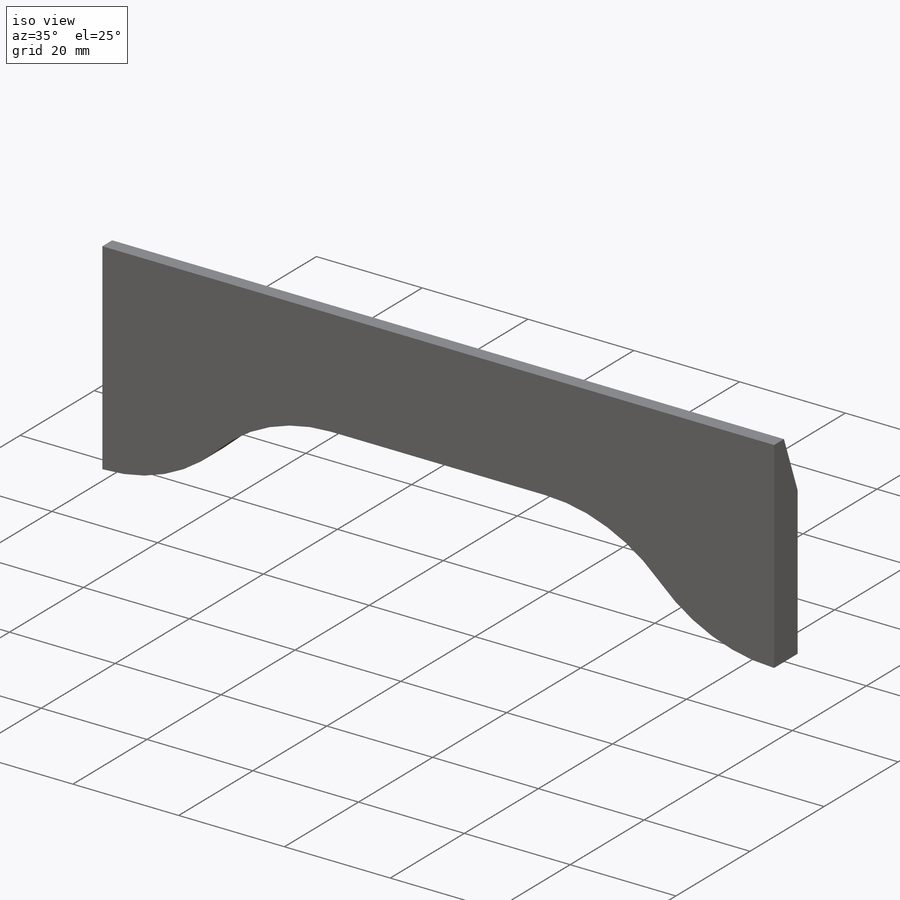
[diagram: iso view]
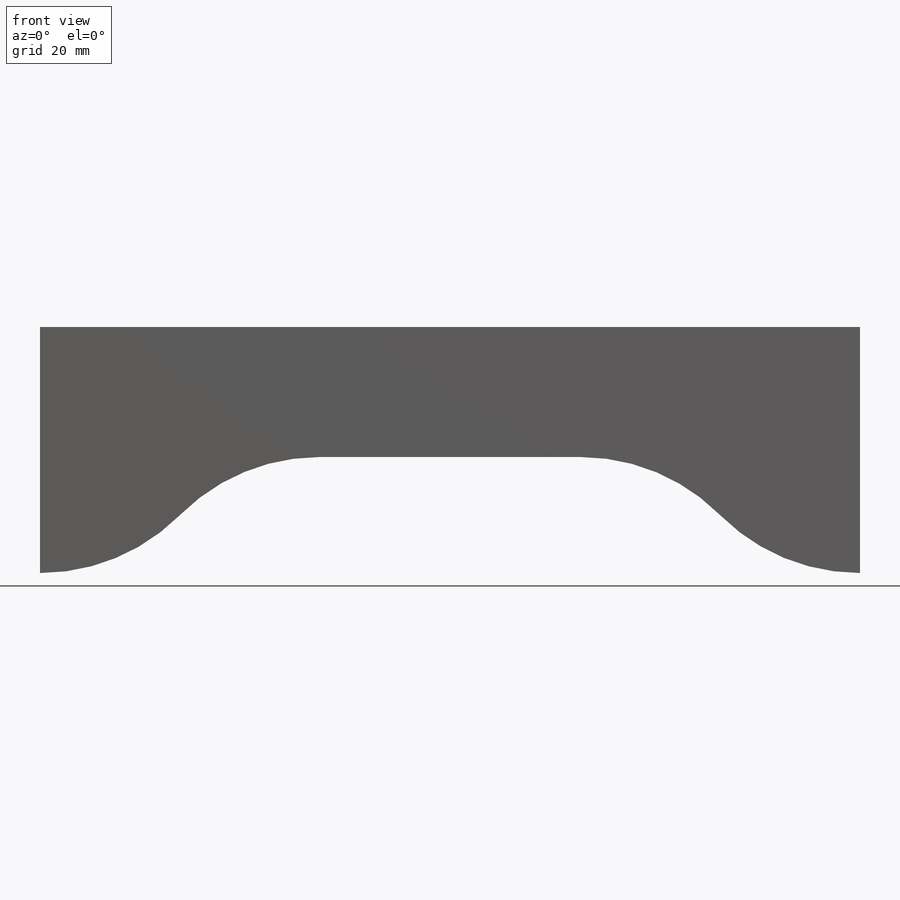
[diagram: front view]
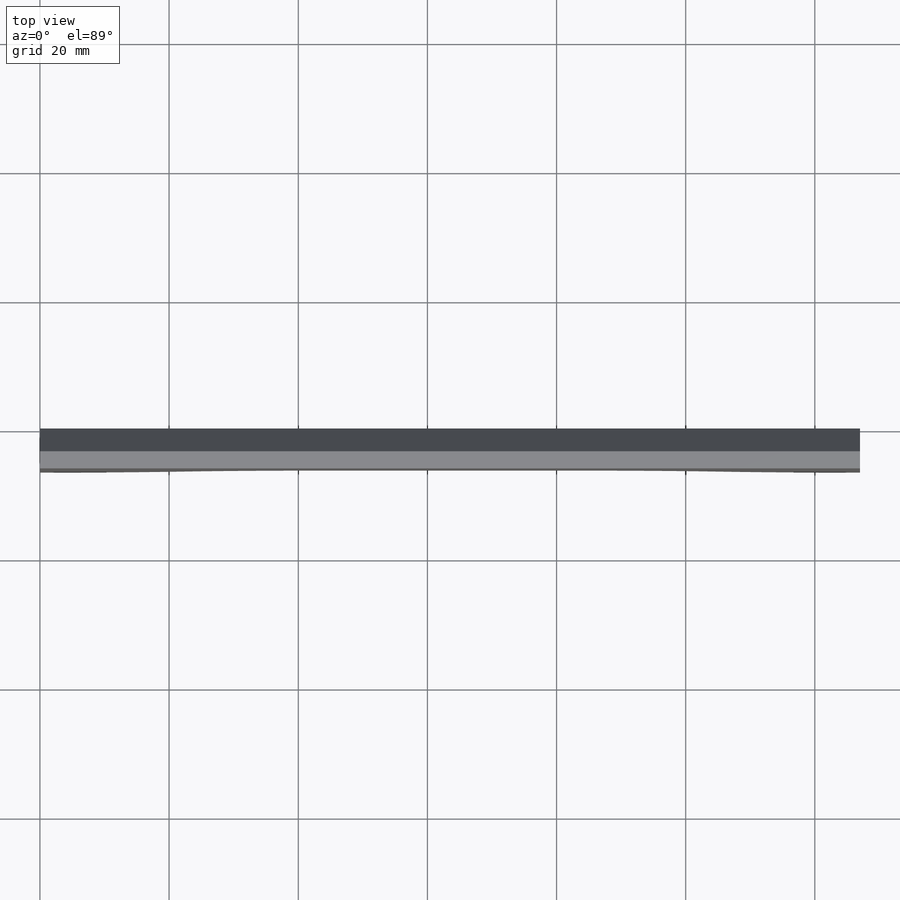
[diagram: top view]
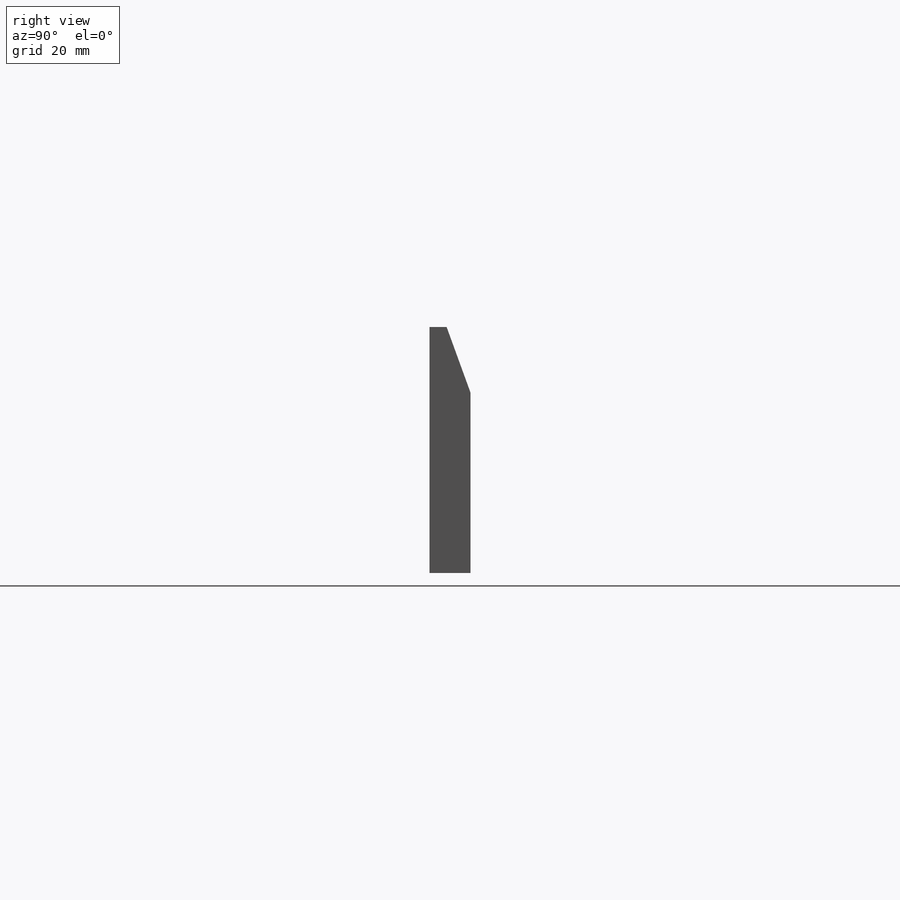
[diagram: right view]
SOLIDWORKS PART (.sldprt)
format: sldprt  version: not decoded by parser v0  size: 148,992 bytes
history: native  units: mm
features: sketch x2, material x1, extrude x1, cut_extrude x1, fillet x1, chamfer x1 (+11 scaffold rows collapsed)
feature tree (18):
  scaffold x11  (default folders/planes/origin — collapsed)
  material  "Material <not specified>"
  sketch  "Sketch1"  dims[D1=127.0mm D2=38.1mm]
  extrude  "Boss-Extrude1"  Depth=6.35mm
  sketch  "Sketch2"  dims[c1.D1=12.7mm c1.D2=12.7mm c1.D3=~40.469791mm c2.D3=45.0deg c2.D4=25.4mm c2.D5=25.4mm c3.D5=45.0deg]
  cut_extrude  "Cut-Extrude1"  Depth=6.35mm
  fillet  "Fillet1"  Radius=30.48mm
  chamfer  "Chamfer1"  Distance=10.16mm Angle=20deg
decode coverage: 6 of 6 modeling features carry decoded parameters
note: ~ marks probable driven/reference dimensions
note: suppression state not decoded; provenance and decode notes live in map.json
